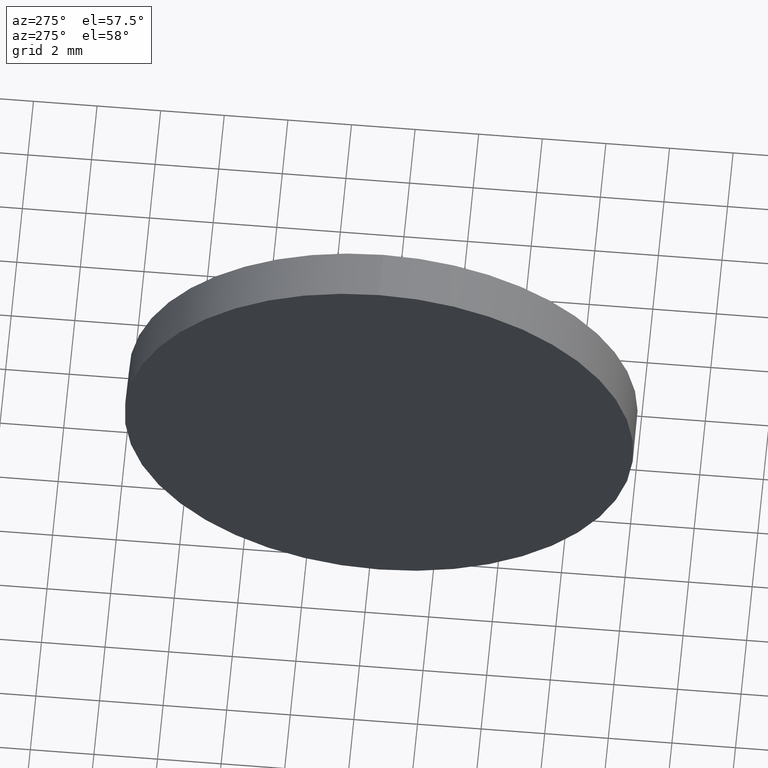
[diagram: clean part render]
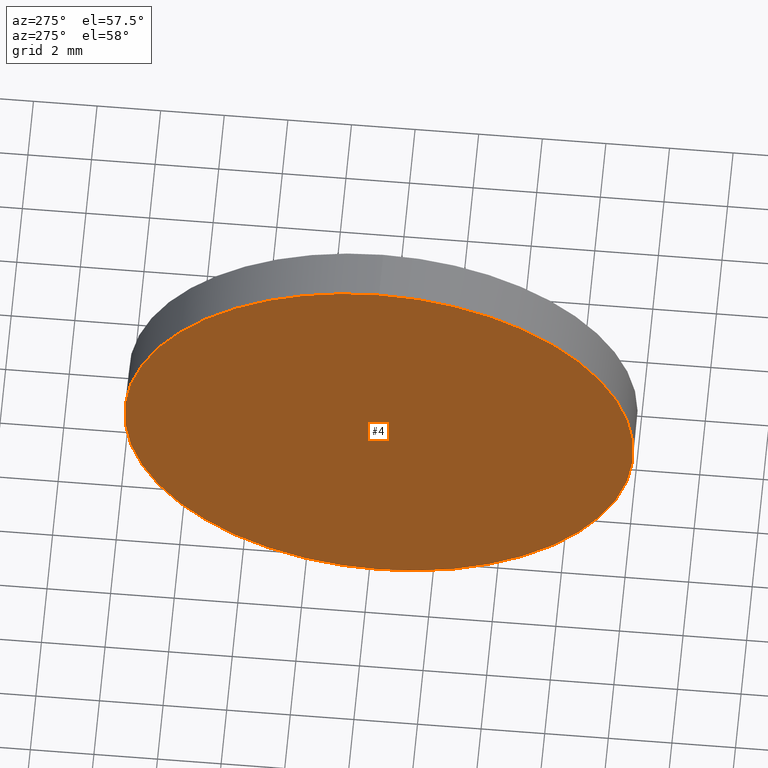
[diagram: same view with one face highlighted and labeled with its STEP entity id]
A machine part, auxiliary view. The second image highlights one B-rep face of the part: STEP entity #4.
In plain terms, the highlighted planar face has unit normal (1, 0, 0).
Its self-contained STEP definition (entity closure, byte-faithful):
#4 = ADVANCED_FACE ( 'NONE', ( #86 ), #25, .F. ) ;
#7 = VERTEX_POINT ( 'NONE', #69 ) ;
#25 = PLANE ( 'NONE',  #146 ) ;
#26 = DIRECTION ( 'NONE',  ( -1.000000000000000000, -0.0000000000000000000, -0.0000000000000000000 ) ) ;
#42 = VERTEX_POINT ( 'NONE', #151 ) ;
#53 = EDGE_CURVE ( 'NONE', #42, #7, #156, .T. ) ;
#62 = DIRECTION ( 'NONE',  ( 0.0000000000000000000, 0.0000000000000000000, 1.000000000000000000 ) ) ;
#69 = CARTESIAN_POINT ( 'NONE',  ( 485.4010122336356400, -76.31670347196424600, 7.999999999999992900 ) ) ;
#82 = ORIENTED_EDGE ( 'NONE', *, *, #53, .T. ) ;
#86 = FACE_OUTER_BOUND ( 'NONE', #141, .T. ) ;
#89 = DIRECTION ( 'NONE',  ( 0.0000000000000000000, 0.0000000000000000000, 1.000000000000000000 ) ) ;
#90 = CARTESIAN_POINT ( 'NONE',  ( 485.4010122336356400, -76.31670347196424600, 0.0000000000000000000 ) ) ;
#91 = CARTESIAN_POINT ( 'NONE',  ( 485.4010122336356400, -76.31670347196424600, 0.0000000000000000000 ) ) ;
#93 = AXIS2_PLACEMENT_3D ( 'NONE', #91, #26, #89 ) ;
#103 = CARTESIAN_POINT ( 'NONE',  ( 485.4010122336356400, -76.31670347196424600, 0.0000000000000000000 ) ) ;
#110 = CIRCLE ( 'NONE', #93, 7.999999999999992900 ) ;
#111 = ORIENTED_EDGE ( 'NONE', *, *, #177, .T. ) ;
#125 = AXIS2_PLACEMENT_3D ( 'NONE', #103, #139, #62 ) ;
#128 = DIRECTION ( 'NONE',  ( 0.0000000000000000000, 0.0000000000000000000, -1.000000000000000000 ) ) ;
#139 = DIRECTION ( 'NONE',  ( -1.000000000000000000, -0.0000000000000000000, -0.0000000000000000000 ) ) ;
#141 = EDGE_LOOP ( 'NONE', ( #111, #82 ) ) ;
#146 = AXIS2_PLACEMENT_3D ( 'NONE', #90, #167, #128 ) ;
#151 = CARTESIAN_POINT ( 'NONE',  ( 485.4010122336356400, -76.31670347196424600, -7.999999999999992900 ) ) ;
#156 = CIRCLE ( 'NONE', #125, 7.999999999999992900 ) ;
#167 = DIRECTION ( 'NONE',  ( 1.000000000000000000, 0.0000000000000000000, 0.0000000000000000000 ) ) ;
#177 = EDGE_CURVE ( 'NONE', #7, #42, #110, .T. ) ;